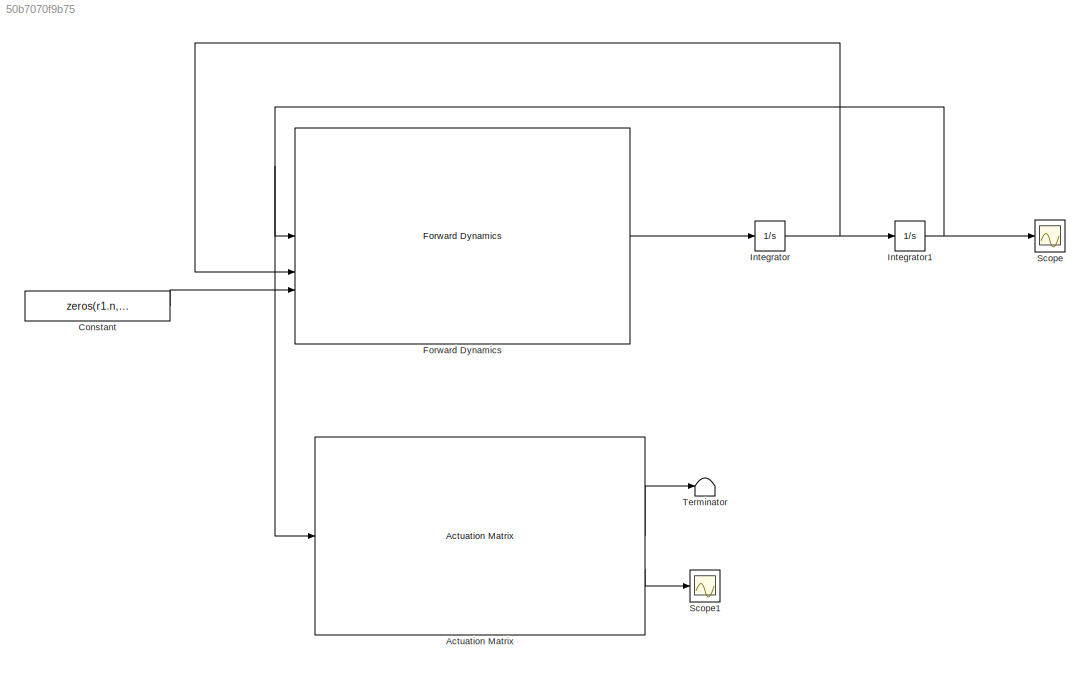
MODEL slx_50b7070f9b75
KIND model
CONFIG AbsTol = auto
CONFIG EnableMultiTasking = off
CONFIG FixedStep = auto
CONFIG MaxStep = auto
CONFIG MinStep = auto
CONFIG RelTol = 1e-3
CONFIG SampleTimeConstraint = Unconstrained
CONFIG SolverName = ode15s
CONFIG StartTime = 0.0
CONFIG StopTime = 10.0
BLOCK [Reference] Actuation Matrix  REF=SoftRobotics/Actuation Matrix
  SourceBlock = SoftRobotics/Actuation Matrix
  SourceProductName = Jelly
BLOCK [Constant] Constant
  Value = zeros(r1.n, 1)
BLOCK [Reference] Forward Dynamics  REF=SoftRobotics/Forward Dynamics
  SourceBlock = SoftRobotics/Forward Dynamics
  SourceProductName = Jelly
BLOCK [Integrator] Integrator
BLOCK [Integrator] Integrator1
  InitialCondition = ones(r1.n, 1)
BLOCK [Scope] Scope
  Floating = off
  NumInputPorts = 1
  ScopeSpecificationString = Simulink.scopes.TimeScopeBlockCfg('CurrentConfiguration', extmgr.ConfigurationSet(extmgr.Configuration('Core','General UI',true),extmgr.Configuration('Core','Source UI',true),extmgr.Configuration('Sources','WiredSimulink',true),extmgr.Configuration('Visuals','Time Domain',true,'SerializedDisplays',{struct('MinYLimReal','-42.3805','MaxYLimReal','25.23906','YLabelReal','','MinYLimMag','0.00000','Max...<+1440ch>
BLOCK [Scope] Scope1
  Floating = off
  NumInputPorts = 1
  ScopeSpecificationString = Simulink.scopes.TimeScopeBlockCfg('CurrentConfiguration', extmgr.ConfigurationSet(extmgr.Configuration('Core','General UI',true),extmgr.Configuration('Core','Source UI',true),extmgr.Configuration('Sources','WiredSimulink',true,'DataLoggingVariableName','ScopeData1'),extmgr.Configuration('Visuals','Time Domain',true,'SerializedDisplays',{struct('MinYLimReal','-0.46078','MaxYLimReal','3.4012','YLabe...<+1471ch>
BLOCK [Terminator] Terminator
LINE Actuation Matrix:1 -> Terminator:1
LINE Actuation Matrix:2 -> Scope1:1
LINE Constant:1 -> Forward Dynamics:3
LINE Forward Dynamics:1 -> Integrator:1
NET Integrator1:1 -> Actuation Matrix:1, Forward Dynamics:1, Scope:1
NET Integrator:1 -> Forward Dynamics:2, Integrator1:1
note: NET lines group one-source signal fan-out (src -> all destinations, sorted); 1:1 wires keep LINE
